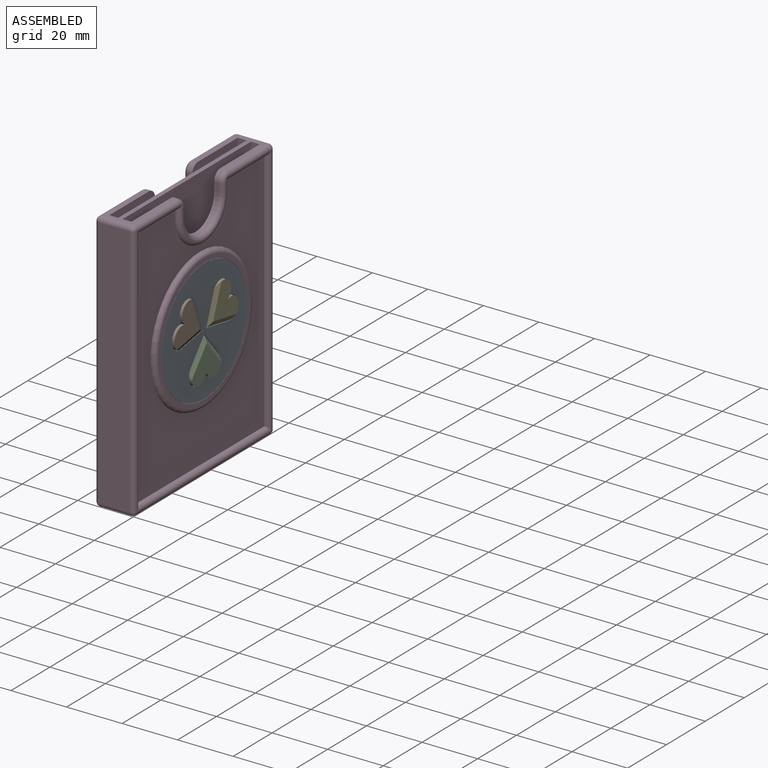
[diagram: assembled view]
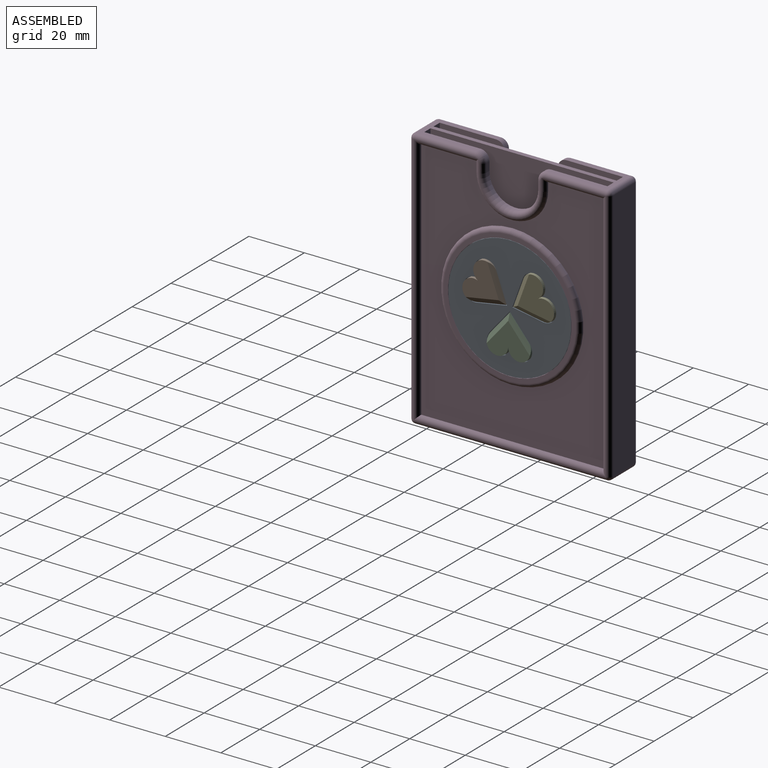
[diagram: assembled view, second angle]
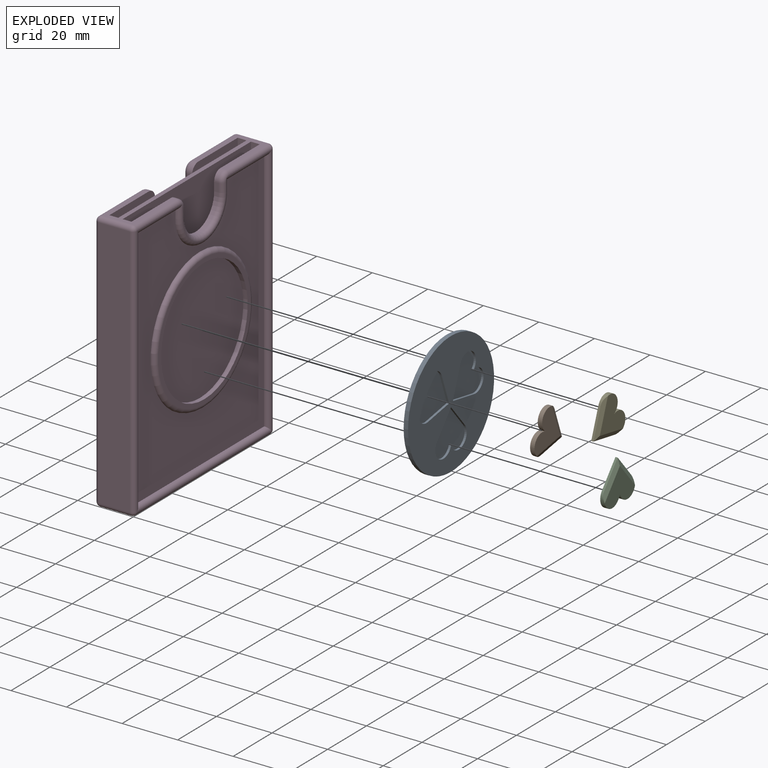
[diagram: exploded view]
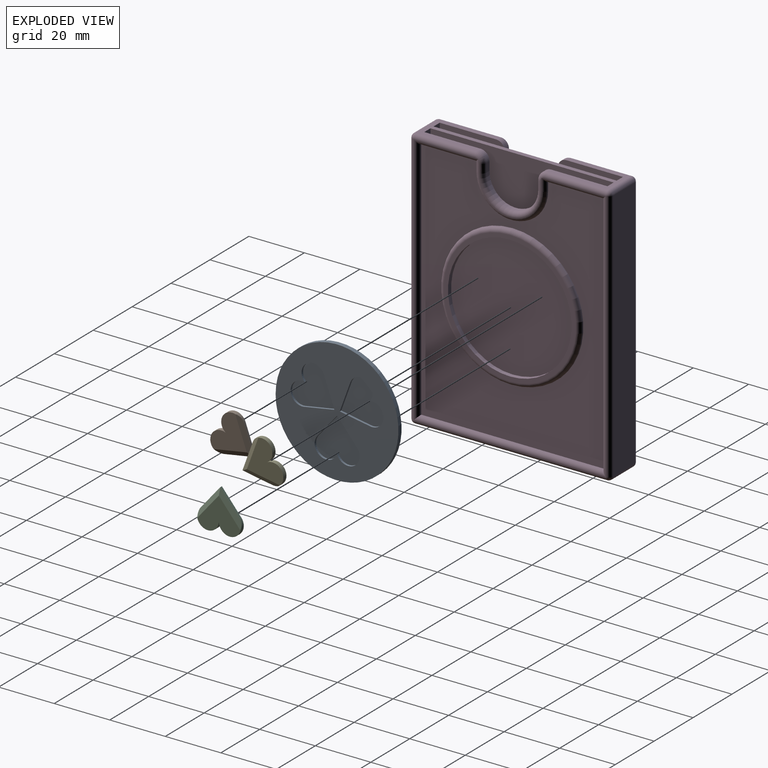
[diagram: exploded view, second angle]
ASSEMBLY  parts=5 mates=4
PART A: 18 faces, bbox 44.2x44.2x1.6 mm
  f0: plane 8.47x7.11mm, normal (-0.77,0.64,0), area 8.8mm2, adj f1,f12,f13,f15
  f1: plane 8.47x7.11mm, normal (0.77,0.64,0), area 8.8mm2, adj f0,f2,f13,f15
  f2: cylinder r=4.15mm len=8.08mm, axis (0,0,-1), area 11.6mm2, adj f1,f12,f13,f15
  f3: plane 10.89x1.92mm, normal (-0.17,-0.98,0), area 8.8mm2, adj f4,f9,f13,f17
  f4: plane 10.39x3.78mm, normal (-0.94,0.34,0), area 8.8mm2, adj f3,f5,f13,f17
  f5: cylinder r=4.15mm len=8.04mm, axis (0,0,-1), area 11.6mm2, adj f4,f9,f13,f17
  f6: plane 10.39x3.78mm, normal (0.94,0.34,0), area 8.8mm2, adj f7,f10,f13,f16
  f7: plane 10.89x1.92mm, normal (0.17,-0.98,0), area 8.8mm2, adj f6,f8,f13,f16
  f8: cylinder r=4.15mm len=8.29mm, axis (0,0,-1), area 11.6mm2, adj f7,f10,f13,f16
  f9: cylinder r=4.15mm len=8.29mm, axis (0,0,-1), area 11.6mm2, adj f3,f5,f13,f17
  f10: cylinder r=4.15mm len=8.04mm, axis (0,0,-1), area 11.6mm2, adj f6,f8,f13,f16
  f11: cylinder r=22.12mm len=44.25mm, axis (0,0,-1), area 220.7mm2, adj f13,f14
  f12: cylinder r=4.15mm len=8.08mm, axis (0,0,-1), area 11.6mm2, adj f0,f2,f13,f15
  f13: plane 44.25x44.25mm, normal (0,0,1), area 1071.7mm2, adj f0,f1,f2,f3,f4,f5,f6,f7
  f14: plane 44.25x44.25mm, normal (0,0,-1), area 1537.6mm2, adj f11
  f15: plane 16.16x15.28mm, normal (0,0,1), area 155.3mm2, adj f0,f1,f2,f12
  f16: plane 15.76x15.11mm, normal (0,0,1), area 155.3mm2, adj f6,f7,f8,f10
  f17: plane 15.76x15.11mm, normal (0,0,1), area 155.3mm2, adj f3,f4,f5,f9
PART B: 8 faces, bbox 15.3x14.7x1.6 mm
  f0: plane 10.66x1.88mm, normal (-0.17,0.98,0), area 8.6mm2, adj f1,f3,f5,f7
  f1: plane 10.17x3.7mm, normal (-0.94,-0.34,0), area 8.6mm2, adj f0,f2,f5,f6
  f2: cylinder r=3.94mm len=7.65mm, axis (0,0,-1), area 21.7mm2, adj f1,f3,f4,f5,f6
  f3: cylinder r=3.94mm len=7.89mm, axis (0,0,-1), area 21.7mm2, adj f0,f2,f4,f5,f7
  f4: plane 13.63x13.14mm, normal (0,0,1), area 106.5mm2, adj f2,f3,f6,f7
  f5: plane 15.28x14.7mm, normal (0,0,-1), area 144.9mm2, adj f0,f1,f2,f3
  f6: plane 12.6x6.27mm, normal (-0.42,-0.15,0.89), area 21.4mm2, adj f1,f2,f4,f7
  f7: plane 14.04x3.17mm, normal (-0.08,0.44,0.89), area 21.4mm2, adj f0,f3,f4,f6
PART C: 8 faces, bbox 15.8x14.8x1.6 mm
  f0: plane 8.29x6.95mm, normal (-0.77,-0.64,0), area 8.6mm2, adj f1,f3,f5,f7
  f1: plane 8.29x6.95mm, normal (0.77,-0.64,0), area 8.6mm2, adj f0,f2,f5,f6
  f2: cylinder r=3.94mm len=7.88mm, axis (0,0,-1), area 21.7mm2, adj f1,f3,f4,f5,f6
  f3: cylinder r=3.94mm len=7.88mm, axis (0,0,-1), area 21.7mm2, adj f0,f2,f4,f5,f7
  f4: plane 15.54x12.3mm, normal (0,0,1), area 106.5mm2, adj f2,f3,f6,f7
  f5: plane 15.75x14.77mm, normal (0,0,-1), area 144.9mm2, adj f0,f1,f2,f3
  f6: plane 11.73x7.88mm, normal (0.34,-0.29,0.89), area 21.4mm2, adj f1,f2,f4,f7
  f7: plane 11.73x7.88mm, normal (-0.34,-0.29,0.89), area 21.4mm2, adj f0,f3,f4,f6
PART D: 62 faces, bbox 72.3x14.3x94.8 mm
  f0: plane 69.14x11.11mm, normal (0,0,1), area 268.8mm2, adj f1,f7,f8,f9,f10,f12,f13,f14
  f1: cylinder r=1.59mm len=11.11mm, axis (0,1,0), area 27.7mm2, adj f0,f2,f26,f50
  f2: plane 91.37x11.11mm, normal (-1,0,0), area 1015.4mm2, adj f1,f3,f24,f48
  f3: cylinder r=1.59mm len=11.11mm, axis (0,1,0), area 27.7mm2, adj f2,f4,f22,f46
  f4: plane 69.14x11.11mm, normal (0,0,-1), area 768.3mm2, adj f3,f5,f21,f45
  f5: cylinder r=1.59mm len=11.11mm, axis (0,1,0), area 27.7mm2, adj f4,f6,f20,f44
  f6: plane 91.37x11.11mm, normal (1,0,0), area 1015.4mm2, adj f5,f7,f23,f47
  f7: cylinder r=1.59mm len=11.11mm, axis (0,1,0), area 27.7mm2, adj f0,f6,f25,f49
  f8: plane 91.37x65.96mm, normal (0,-1,0), area 6027.2mm2, adj f0,f10,f11,f12
  f9: plane 91.37x65.96mm, normal (0,1,0), area 6027.2mm2, adj f0,f34,f35,f36
  f10: plane 91.37x3.18mm, normal (-1,0,0), area 290.1mm2, adj f0,f8,f11,f13
  f11: plane 65.96x3.18mm, normal (0,0,1), area 209.4mm2, adj f8,f10,f12,f13
  f12: plane 91.37x3.18mm, normal (1,0,0), area 290.1mm2, adj f0,f8,f11,f13
  f13: plane 91.37x65.96mm, normal (0,1,0), area 5759.4mm2, adj f0,f10,f11,f12,f14,f15,f16,f17
  f14: cylinder r=3.17mm len=3.18mm, axis (0,1,0), area 7.9mm2, adj f0,f13,f18,f32
  f15: cylinder r=3.17mm len=3.18mm, axis (0,1,0), area 7.9mm2, adj f0,f13,f16,f29
  f16: plane 3.18x1.59mm, normal (-1,0,0), area 5mm2, adj f13,f15,f17,f30
  f17: cylinder r=9.53mm len=19.05mm, axis (0,1,0), area 47.5mm2, adj f13,f16,f18,f33
  f18: plane 3.18x1.59mm, normal (1,0,0), area 5mm2, adj f13,f14,f17,f31
  f19: plane 88.2x65.96mm, normal (0,-1,0), area 3456.9mm2, adj f21,f23,f24,f27,f28,f30,f31,f33
  f20: sphere r=1.59mm, area 4mm2, adj f5,f21,f23
  f21: cylinder r=1.59mm len=69.14mm, axis (-1,0,0), area 339.8mm2, adj f4,f19,f20,f22,f23,f24
  f22: sphere r=1.59mm, area 4mm2, adj f3,f21,f24
  f23: cylinder r=1.59mm len=91.37mm, axis (0,0,-1), area 450.7mm2, adj f6,f19,f20,f21,f25,f27
  f24: cylinder r=1.59mm len=91.37mm, axis (0,0,1), area 450.7mm2, adj f2,f19,f21,f22,f26,f28
  f25: sphere r=1.59mm, area 4mm2, adj f7,f23,f27
  f26: sphere r=1.59mm, area 4mm2, adj f1,f24,f28
  f27: cylinder r=1.59mm len=23.18mm, axis (1,0,0), area 107.8mm2, adj f0,f19,f23,f25,f29,f30
  f28: cylinder r=1.59mm len=23.18mm, axis (-1,0,0), area 107.8mm2, adj f0,f19,f24,f26,f31,f32
  f29: torus R=1.59mm, axis (0,-1,0), area 9.9mm2, adj f15,f27,f30
  f30: cylinder r=1.59mm len=4.49mm, axis (0,0,-1), area 17.1mm2, adj f16,f19,f27,f29,f33
  f31: cylinder r=1.59mm len=4.49mm, axis (0,0,1), area 17.1mm2, adj f18,f19,f28,f32,f33
  f32: torus R=1.59mm, axis (0,-1,0), area 9.9mm2, adj f14,f28,f31
  f33: torus R=11.11mm, axis (0,-1,0), area 174.1mm2, adj f17,f19,f30,f31
  f34: plane 91.37x3.18mm, normal (-1,0,0), area 290.1mm2, adj f0,f9,f35,f37
  f35: plane 65.96x3.18mm, normal (0,0,1), area 209.4mm2, adj f9,f34,f36,f37
  f36: plane 91.37x3.18mm, normal (1,0,0), area 290.1mm2, adj f0,f9,f35,f37
  f37: plane 91.37x65.96mm, normal (0,-1,0), area 5759.4mm2, adj f0,f34,f35,f36,f38,f39,f40,f41
  f38: cylinder r=3.17mm len=3.18mm, axis (0,-1,0), area 7.9mm2, adj f0,f37,f42,f56
  f39: cylinder r=3.17mm len=3.18mm, axis (0,-1,0), area 7.9mm2, adj f0,f37,f40,f53
  f40: plane 3.18x1.59mm, normal (-1,0,0), area 5mm2, adj f37,f39,f41,f54
  f41: cylinder r=9.53mm len=19.05mm, axis (0,-1,0), area 47.5mm2, adj f37,f40,f42,f57
  f42: plane 3.18x1.59mm, normal (1,0,0), area 5mm2, adj f37,f38,f41,f55
  f43: plane 88.2x65.96mm, normal (0,1,0), area 5483.8mm2, adj f45,f47,f48,f51,f52,f54,f55,f57
  f44: sphere r=1.59mm, area 4mm2, adj f5,f45,f47
  f45: cylinder r=1.59mm len=69.14mm, axis (-1,0,0), area 339.8mm2, adj f4,f43,f44,f46,f47,f48
  f46: sphere r=1.59mm, area 4mm2, adj f3,f45,f48
  f47: cylinder r=1.59mm len=91.37mm, axis (0,0,-1), area 450.7mm2, adj f6,f43,f44,f45,f49,f51
  f48: cylinder r=1.59mm len=91.37mm, axis (0,0,1), area 450.7mm2, adj f2,f43,f45,f46,f50,f52
  f49: sphere r=1.59mm, area 4mm2, adj f7,f47,f51
  f50: sphere r=1.59mm, area 4mm2, adj f1,f48,f52
  f51: cylinder r=1.59mm len=23.18mm, axis (1,0,0), area 107.8mm2, adj f0,f43,f47,f49,f53,f54
  f52: cylinder r=1.59mm len=23.18mm, axis (-1,0,0), area 107.8mm2, adj f0,f43,f48,f50,f55,f56
  f53: torus R=1.59mm, axis (0,1,0), area 9.9mm2, adj f39,f51,f54
  f54: cylinder r=1.59mm len=4.49mm, axis (0,0,-1), area 17.1mm2, adj f40,f43,f51,f53,f57
  f55: cylinder r=1.59mm len=4.49mm, axis (0,0,1), area 17.1mm2, adj f42,f43,f52,f56,f57
  f56: torus R=1.59mm, axis (0,1,0), area 9.9mm2, adj f38,f52,f55
  f57: torus R=11.11mm, axis (0,1,0), area 174.1mm2, adj f41,f43,f54,f55
  f58: cylinder r=22.23mm len=44.45mm, axis (0,1,0), area 221.7mm2, adj f59,f60
  f59: plane 47.63x47.63mm, normal (0,-1,0), area 229.6mm2, adj f58,f61
  f60: plane 44.45x44.45mm, normal (0,-1,0), area 1551.8mm2, adj f58
  f61: torus R=23.81mm, axis (0,-1,0), area 388.9mm2, adj f19,f59
PART E: 8 faces, bbox 15.3x14.7x1.6 mm
  f0: plane 10.17x3.7mm, normal (0.94,-0.34,0), area 8.6mm2, adj f1,f3,f5,f7
  f1: plane 10.66x1.88mm, normal (0.17,0.98,0), area 8.6mm2, adj f0,f2,f5,f6
  f2: cylinder r=3.94mm len=7.89mm, axis (0,0,-1), area 21.7mm2, adj f1,f3,f4,f5,f6
  f3: cylinder r=3.94mm len=7.65mm, axis (0,0,-1), area 21.7mm2, adj f0,f2,f4,f5,f7
  f4: plane 13.63x13.14mm, normal (0,0,1), area 106.5mm2, adj f2,f3,f6,f7
  f5: plane 15.28x14.7mm, normal (0,0,-1), area 144.9mm2, adj f0,f1,f2,f3
  f6: plane 14.04x3.17mm, normal (0.08,0.44,0.89), area 21.4mm2, adj f1,f2,f4,f7
  f7: plane 12.6x6.27mm, normal (0.42,-0.15,0.89), area 21.4mm2, adj f0,f3,f4,f6
PLACE A rot(axis=(-0.58,0.58,-0.58),120deg) t=(1.52,-107.83,80.8)mm
PLACE B rot(axis=(-0.58,0.58,-0.58),120deg) t=(2.32,-107.84,80.8)mm
PLACE C rot(axis=(-0.58,0.58,-0.58),120deg) t=(2.32,-107.83,80.8)mm
PLACE D rot(axis=(0,0,1),90deg) t=(-4.83,-107.83,80.8)mm
PLACE E rot(axis=(-0.58,0.58,-0.58),120deg) t=(2.32,-107.83,80.8)mm
MATE fastened B.f5 <-> A.f16  axis (-1,0,0) through (2.32,-116.82,85.99)mm
MATE fastened E.f5 <-> A.f17  axis (-1,0,0) through (2.32,-98.85,85.99)mm
MATE fastened C.f5 <-> A.f15  axis (-1,0,0) through (2.32,-107.83,70.42)mm
MATE fastened A.f11 <-> D.f58  axis (-1,0,0) through (1.52,-107.83,80.8)mm
